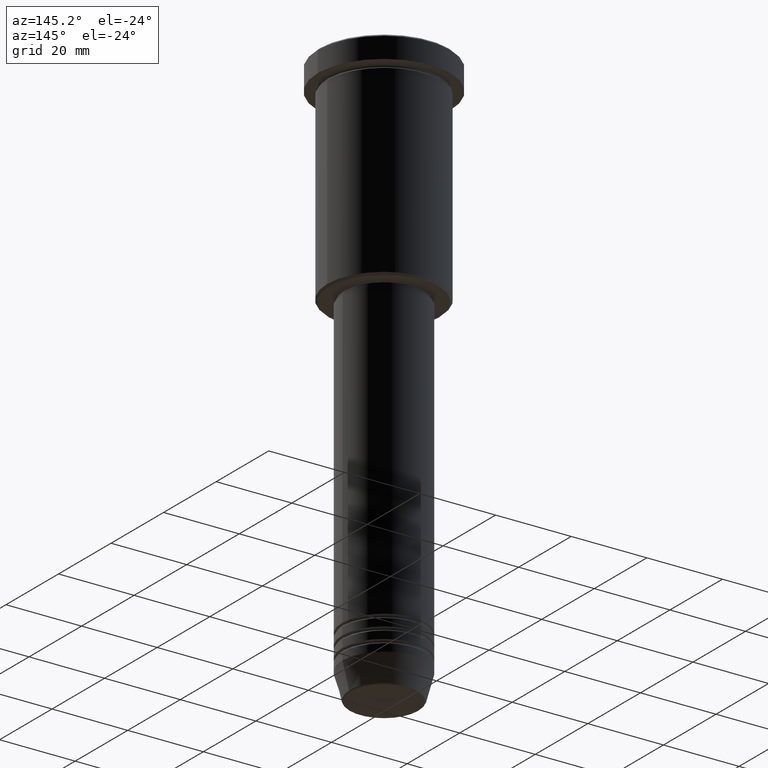
[diagram: clean part render]
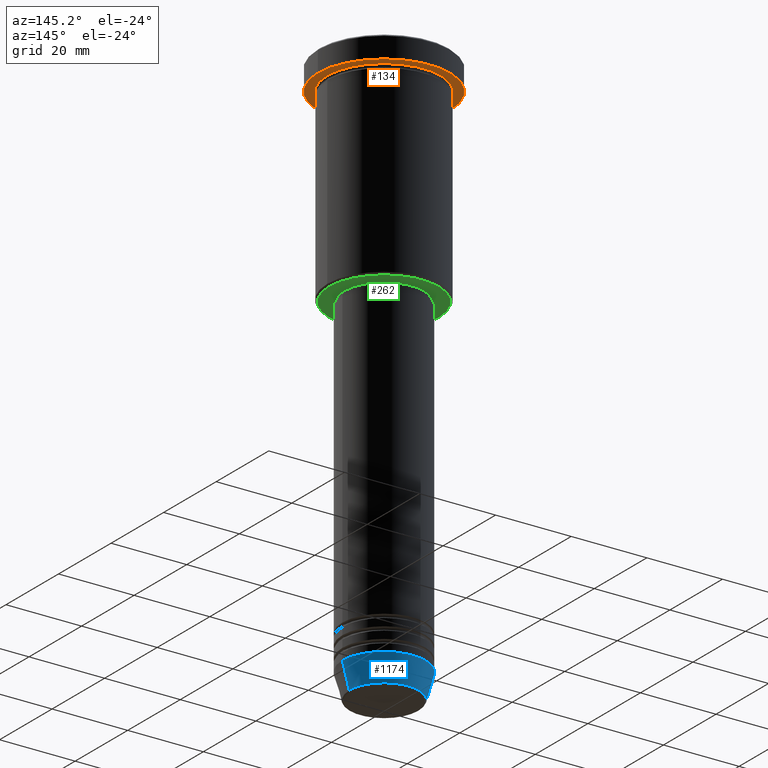
[diagram: same view with three faces highlighted in distinct colors, each labeled with its STEP entity id]
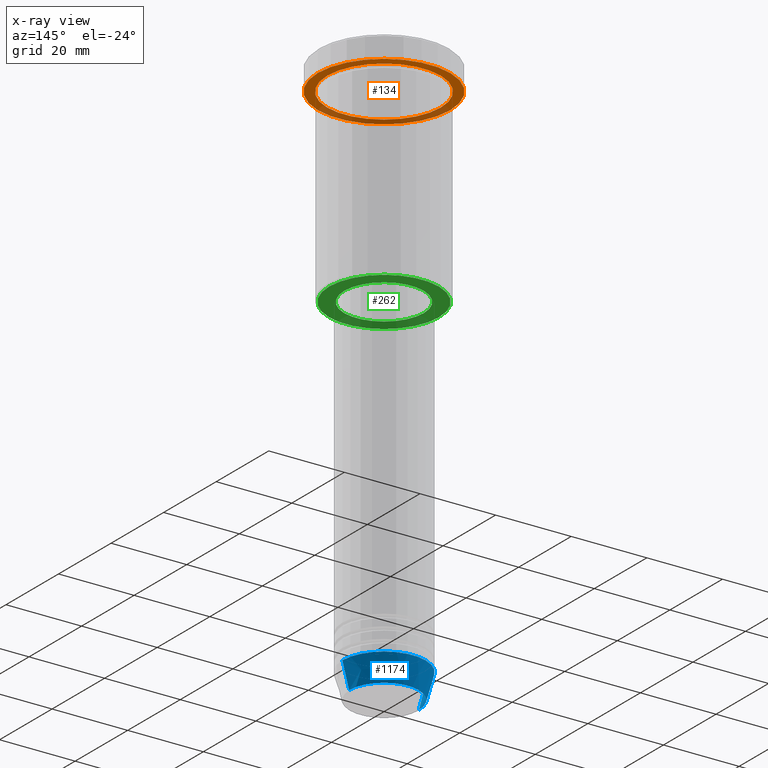
[diagram: x-ray of the same camera — body ghosted, the three highlighted faces saturated]
A machine part, auxiliary view with three faces highlighted in distinct colors.
The next image is the same camera in x-ray (body ghosted, the three faces saturated) — at least one of them is partly hidden behind the body in this view.
Their STEP definitions:

[orange] entity #134 — the highlighted planar face has unit normal (0, 0, -1).
#33 = CARTESIAN_POINT ( 'NONE',  ( 0.000000000000000000, 17.50000000000000000, -5.999999999999995559 ) ) ;
#65 = EDGE_LOOP ( 'NONE', ( #677, #663 ) ) ;
#96 = DIRECTION ( 'NONE',  ( -0.000000000000000000, -0.000000000000000000, 1.000000000000000000 ) ) ;
#105 = AXIS2_PLACEMENT_3D ( 'NONE', #1098, #96, #383 ) ;
#119 = CARTESIAN_POINT ( 'NONE',  ( -15.00000000000000000, 0.000000000000000000, -5.999999999999994671 ) ) ;
#134 = ADVANCED_FACE ( 'NONE', ( #682, #592 ), #874, .T. ) ;
#236 = CARTESIAN_POINT ( 'NONE',  ( 15.00000000000000000, 1.836970198721029589E-15, -5.999999999999994671 ) ) ;
#241 = CIRCLE ( 'NONE', #908, 17.50000000000000000 ) ;
#274 = CARTESIAN_POINT ( 'NONE',  ( 0.000000000000000000, 0.000000000000000000, -5.999999999999995559 ) ) ;
#279 = AXIS2_PLACEMENT_3D ( 'NONE', #1097, #379, #651 ) ;
#293 = CARTESIAN_POINT ( 'NONE',  ( 17.50000000000000000, 0.000000000000000000, -5.999999999999995559 ) ) ;
#313 = CIRCLE ( 'NONE', #746, 15.00000000000000000 ) ;
#321 = CARTESIAN_POINT ( 'NONE',  ( 0.000000000000000000, 0.000000000000000000, -5.999999999999995559 ) ) ;
#349 = EDGE_CURVE ( 'NONE', #909, #652, #313, .T. ) ;
#362 = EDGE_CURVE ( 'NONE', #652, #909, #460, .T. ) ;
#374 = CARTESIAN_POINT ( 'NONE',  ( -17.50000000000000000, 2.143131898507868248E-15, -5.999999999999995559 ) ) ;
#379 = DIRECTION ( 'NONE',  ( -0.000000000000000000, -0.000000000000000000, 1.000000000000000000 ) ) ;
#383 = DIRECTION ( 'NONE',  ( -1.000000000000000000, 0.000000000000000000, 0.000000000000000000 ) ) ;
#430 = VERTEX_POINT ( 'NONE', #374 ) ;
#460 = CIRCLE ( 'NONE', #105, 15.00000000000000000 ) ;
#536 = AXIS2_PLACEMENT_3D ( 'NONE', #33, #1128, #1138 ) ;
#559 = EDGE_LOOP ( 'NONE', ( #1049, #593 ) ) ;
#581 = DIRECTION ( 'NONE',  ( -0.000000000000000000, -0.000000000000000000, 1.000000000000000000 ) ) ;
#592 = FACE_OUTER_BOUND ( 'NONE', #559, .T. ) ;
#593 = ORIENTED_EDGE ( 'NONE', *, *, #620, .F. ) ;
#620 = EDGE_CURVE ( 'NONE', #430, #881, #241, .T. ) ;
#651 = DIRECTION ( 'NONE',  ( 1.000000000000000000, 0.000000000000000000, 0.000000000000000000 ) ) ;
#652 = VERTEX_POINT ( 'NONE', #236 ) ;
#663 = ORIENTED_EDGE ( 'NONE', *, *, #362, .T. ) ;
#677 = ORIENTED_EDGE ( 'NONE', *, *, #349, .T. ) ;
#682 = FACE_BOUND ( 'NONE', #65, .T. ) ;
#744 = DIRECTION ( 'NONE',  ( -0.000000000000000000, -0.000000000000000000, 1.000000000000000000 ) ) ;
#746 = AXIS2_PLACEMENT_3D ( 'NONE', #274, #744, #1104 ) ;
#874 = PLANE ( 'NONE',  #536 ) ;
#876 = EDGE_CURVE ( 'NONE', #881, #430, #1183, .T. ) ;
#881 = VERTEX_POINT ( 'NONE', #293 ) ;
#908 = AXIS2_PLACEMENT_3D ( 'NONE', #321, #581, #942 ) ;
#909 = VERTEX_POINT ( 'NONE', #119 ) ;
#942 = DIRECTION ( 'NONE',  ( 1.000000000000000000, 0.000000000000000000, 0.000000000000000000 ) ) ;
#1049 = ORIENTED_EDGE ( 'NONE', *, *, #876, .F. ) ;
#1097 = CARTESIAN_POINT ( 'NONE',  ( 0.000000000000000000, 0.000000000000000000, -5.999999999999995559 ) ) ;
#1098 = CARTESIAN_POINT ( 'NONE',  ( 0.000000000000000000, 0.000000000000000000, -5.999999999999995559 ) ) ;
#1104 = DIRECTION ( 'NONE',  ( -1.000000000000000000, 0.000000000000000000, 0.000000000000000000 ) ) ;
#1128 = DIRECTION ( 'NONE',  ( 0.000000000000000000, 0.000000000000000000, -1.000000000000000000 ) ) ;
#1138 = DIRECTION ( 'NONE',  ( -1.000000000000000000, 0.000000000000000000, -0.000000000000000000 ) ) ;
#1183 = CIRCLE ( 'NONE', #279, 17.50000000000000000 ) ;

[blue] entity #1174 — the highlighted conical surface has half-angle 15 deg.
#1 = CARTESIAN_POINT ( 'NONE',  ( 11.00000000000000000, 0.000000000000000000, -144.0000000000000284 ) ) ;
#2 = AXIS2_PLACEMENT_3D ( 'NONE', #276, #625, #604 ) ;
#3 = EDGE_CURVE ( 'NONE', #556, #140, #312, .T. ) ;
#11 = DIRECTION ( 'NONE',  ( 0.2588190451025213501, 0.000000000000000000, 0.9659258262890680902 ) ) ;
#14 = AXIS2_PLACEMENT_3D ( 'NONE', #1113, #478, #189 ) ;
#58 = LINE ( 'NONE', #1039, #928 ) ;
#111 = ORIENTED_EDGE ( 'NONE', *, *, #3, .T. ) ;
#131 = CARTESIAN_POINT ( 'NONE',  ( -9.223655072137189492, 1.238341722557647202E-15, -150.6294095225512706 ) ) ;
#140 = VERTEX_POINT ( 'NONE', #131 ) ;
#166 = CARTESIAN_POINT ( 'NONE',  ( -11.00000000000000000, 1.347111479062088405E-15, -144.0000000000000284 ) ) ;
#189 = DIRECTION ( 'NONE',  ( 1.000000000000000000, 0.000000000000000000, 0.000000000000000000 ) ) ;
#207 = EDGE_LOOP ( 'NONE', ( #111, #906, #785, #648 ) ) ;
#210 = VERTEX_POINT ( 'NONE', #1073 ) ;
#276 = CARTESIAN_POINT ( 'NONE',  ( 0.000000000000000000, 0.000000000000000000, -144.0000000000000284 ) ) ;
#278 = CIRCLE ( 'NONE', #1129, 11.00000000000000000 ) ;
#312 = CIRCLE ( 'NONE', #14, 9.223655072137189492 ) ;
#331 = DIRECTION ( 'NONE',  ( 1.000000000000000000, 0.000000000000000000, 0.000000000000000000 ) ) ;
#360 = FACE_OUTER_BOUND ( 'NONE', #207, .T. ) ;
#382 = EDGE_CURVE ( 'NONE', #556, #210, #932, .T. ) ;
#478 = DIRECTION ( 'NONE',  ( -0.000000000000000000, -0.000000000000000000, 1.000000000000000000 ) ) ;
#491 = CONICAL_SURFACE ( 'NONE', #2, 11.00000000000000000, 0.2617993877991500740 ) ;
#513 = CARTESIAN_POINT ( 'NONE',  ( 0.000000000000000000, 0.000000000000000000, -144.0000000000000284 ) ) ;
#537 = VECTOR ( 'NONE', #11, 1000.000000000000000 ) ;
#556 = VERTEX_POINT ( 'NONE', #1024 ) ;
#604 = DIRECTION ( 'NONE',  ( 1.000000000000000000, 0.000000000000000000, 0.000000000000000000 ) ) ;
#625 = DIRECTION ( 'NONE',  ( -0.000000000000000000, -0.000000000000000000, 1.000000000000000000 ) ) ;
#648 = ORIENTED_EDGE ( 'NONE', *, *, #382, .F. ) ;
#674 = VERTEX_POINT ( 'NONE', #166 ) ;
#679 = DIRECTION ( 'NONE',  ( -0.2588190451025213501, 3.169619151431772337E-17, 0.9659258262890680902 ) ) ;
#702 = EDGE_CURVE ( 'NONE', #210, #674, #278, .T. ) ;
#707 = DIRECTION ( 'NONE',  ( -0.000000000000000000, -0.000000000000000000, 1.000000000000000000 ) ) ;
#785 = ORIENTED_EDGE ( 'NONE', *, *, #702, .F. ) ;
#906 = ORIENTED_EDGE ( 'NONE', *, *, #1020, .T. ) ;
#928 = VECTOR ( 'NONE', #679, 1000.000000000000000 ) ;
#932 = LINE ( 'NONE', #1, #537 ) ;
#1020 = EDGE_CURVE ( 'NONE', #140, #674, #58, .T. ) ;
#1024 = CARTESIAN_POINT ( 'NONE',  ( 9.223655072137189492, 0.000000000000000000, -150.6294095225512706 ) ) ;
#1039 = CARTESIAN_POINT ( 'NONE',  ( -11.00000000000000000, 1.347111479062088405E-15, -144.0000000000000284 ) ) ;
#1073 = CARTESIAN_POINT ( 'NONE',  ( 11.00000000000000000, 0.000000000000000000, -144.0000000000000284 ) ) ;
#1113 = CARTESIAN_POINT ( 'NONE',  ( 0.000000000000000000, 0.000000000000000000, -150.6294095225512706 ) ) ;
#1129 = AXIS2_PLACEMENT_3D ( 'NONE', #513, #707, #331 ) ;
#1174 = ADVANCED_FACE ( 'NONE', ( #360 ), #491, .T. ) ;

[green] entity #262 — the highlighted planar face has unit normal (0, 0, -1).
#39 = CARTESIAN_POINT ( 'NONE',  ( 0.000000000000000000, 0.000000000000000000, -56.00000000000000711 ) ) ;
#79 = CARTESIAN_POINT ( 'NONE',  ( 0.000000000000000000, 0.000000000000000000, -56.00000000000000711 ) ) ;
#102 = EDGE_LOOP ( 'NONE', ( #298, #534 ) ) ;
#118 = VERTEX_POINT ( 'NONE', #416 ) ;
#144 = EDGE_CURVE ( 'NONE', #722, #338, #332, .T. ) ;
#170 = VERTEX_POINT ( 'NONE', #395 ) ;
#178 = AXIS2_PLACEMENT_3D ( 'NONE', #692, #791, #426 ) ;
#191 = ORIENTED_EDGE ( 'NONE', *, *, #1164, .T. ) ;
#216 = EDGE_LOOP ( 'NONE', ( #1047, #191 ) ) ;
#217 = CIRCLE ( 'NONE', #1106, 10.49999999999999822 ) ;
#222 = AXIS2_PLACEMENT_3D ( 'NONE', #79, #446, #798 ) ;
#262 = ADVANCED_FACE ( 'NONE', ( #716, #1078 ), #879, .T. ) ;
#298 = ORIENTED_EDGE ( 'NONE', *, *, #499, .T. ) ;
#332 = CIRCLE ( 'NONE', #567, 14.49999999999996980 ) ;
#338 = VERTEX_POINT ( 'NONE', #1016 ) ;
#344 = DIRECTION ( 'NONE',  ( -0.000000000000000000, -0.000000000000000000, 1.000000000000000000 ) ) ;
#395 = CARTESIAN_POINT ( 'NONE',  ( -10.49999999999999822, 1.285879139104720633E-15, -56.00000000000000711 ) ) ;
#399 = DIRECTION ( 'NONE',  ( 1.000000000000000000, 0.000000000000000000, 0.000000000000000000 ) ) ;
#410 = DIRECTION ( 'NONE',  ( -1.000000000000000000, 0.000000000000000000, 0.000000000000000000 ) ) ;
#416 = CARTESIAN_POINT ( 'NONE',  ( 10.49999999999999822, 0.000000000000000000, -56.00000000000000711 ) ) ;
#426 = DIRECTION ( 'NONE',  ( -1.000000000000000000, 0.000000000000000000, -0.000000000000000000 ) ) ;
#427 = AXIS2_PLACEMENT_3D ( 'NONE', #601, #344, #1151 ) ;
#446 = DIRECTION ( 'NONE',  ( 0.000000000000000000, 0.000000000000000000, -1.000000000000000000 ) ) ;
#495 = DIRECTION ( 'NONE',  ( 0.000000000000000000, 0.000000000000000000, -1.000000000000000000 ) ) ;
#499 = EDGE_CURVE ( 'NONE', #118, #170, #217, .T. ) ;
#534 = ORIENTED_EDGE ( 'NONE', *, *, #728, .T. ) ;
#567 = AXIS2_PLACEMENT_3D ( 'NONE', #39, #495, #410 ) ;
#594 = CIRCLE ( 'NONE', #222, 14.49999999999996980 ) ;
#601 = CARTESIAN_POINT ( 'NONE',  ( 0.000000000000000000, 0.000000000000000000, -56.00000000000000711 ) ) ;
#680 = CARTESIAN_POINT ( 'NONE',  ( 14.49999999999996980, 0.000000000000000000, -56.00000000000000711 ) ) ;
#692 = CARTESIAN_POINT ( 'NONE',  ( 0.000000000000000000, 15.00000000000000000, -56.00000000000000711 ) ) ;
#716 = FACE_OUTER_BOUND ( 'NONE', #216, .T. ) ;
#722 = VERTEX_POINT ( 'NONE', #680 ) ;
#728 = EDGE_CURVE ( 'NONE', #170, #118, #849, .T. ) ;
#763 = CARTESIAN_POINT ( 'NONE',  ( 0.000000000000000000, 0.000000000000000000, -56.00000000000000711 ) ) ;
#791 = DIRECTION ( 'NONE',  ( 0.000000000000000000, 0.000000000000000000, -1.000000000000000000 ) ) ;
#798 = DIRECTION ( 'NONE',  ( -1.000000000000000000, 0.000000000000000000, 0.000000000000000000 ) ) ;
#849 = CIRCLE ( 'NONE', #427, 10.49999999999999822 ) ;
#862 = DIRECTION ( 'NONE',  ( -0.000000000000000000, -0.000000000000000000, 1.000000000000000000 ) ) ;
#879 = PLANE ( 'NONE',  #178 ) ;
#1016 = CARTESIAN_POINT ( 'NONE',  ( -14.49999999999996980, 1.806354028742344224E-15, -56.00000000000000711 ) ) ;
#1047 = ORIENTED_EDGE ( 'NONE', *, *, #144, .T. ) ;
#1078 = FACE_BOUND ( 'NONE', #102, .T. ) ;
#1106 = AXIS2_PLACEMENT_3D ( 'NONE', #763, #862, #399 ) ;
#1151 = DIRECTION ( 'NONE',  ( 1.000000000000000000, 0.000000000000000000, 0.000000000000000000 ) ) ;
#1164 = EDGE_CURVE ( 'NONE', #338, #722, #594, .T. ) ;